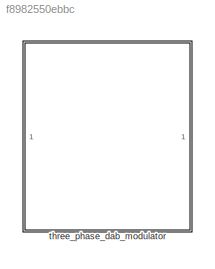
MODEL slx_f8982550ebbc
KIND library
CONFIG AbsTol = auto
CONFIG EnableMultiTasking = off
CONFIG FixedStep = auto
CONFIG MaxStep = auto
CONFIG MinStep = auto
CONFIG RelTol = 1e-3
CONFIG SampleTimeConstraint = Unconstrained
CONFIG SolverName = VariableStepAuto
CONFIG StartTime = 0.0
CONFIG StopTime = 10.0
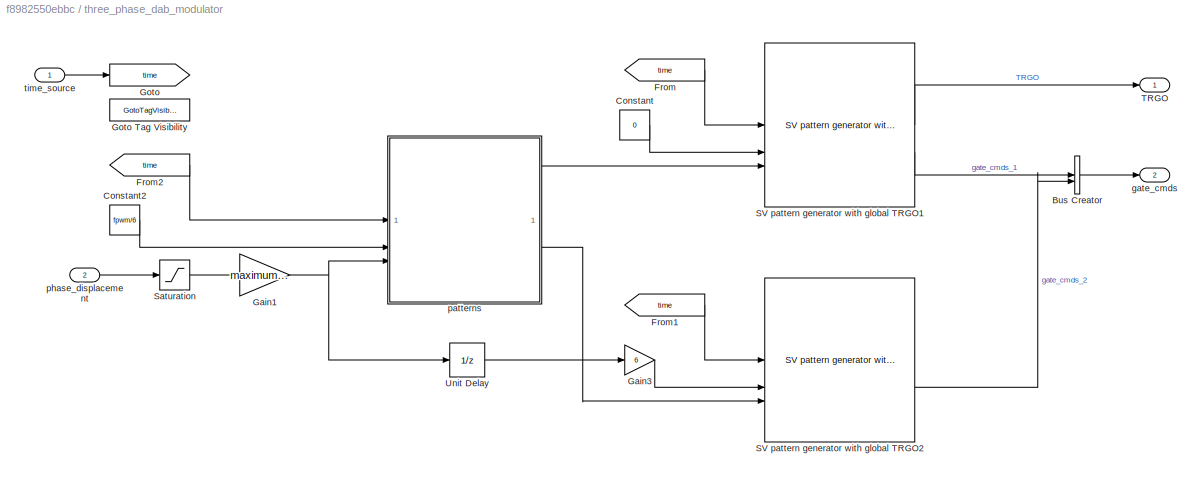
BLOCK [SubSystem] three_phase_dab_modulator
BLOCK [BusCreator] three_phase_dab_modulator/Bus Creator
  DisplayOption = bar
  InheritFromInputs = on
  Inputs = 2
BLOCK [Constant] three_phase_dab_modulator/Constant
  Value = 0
BLOCK [Constant] three_phase_dab_modulator/Constant2
  Value = fpwm/6
BLOCK [From] three_phase_dab_modulator/From
  GotoTag = time
  TagVisibility = scoped
BLOCK [From] three_phase_dab_modulator/From1
  GotoTag = time
  TagVisibility = scoped
BLOCK [From] three_phase_dab_modulator/From2
  GotoTag = time
  TagVisibility = scoped
BLOCK [Gain] three_phase_dab_modulator/Gain1
  Gain = maximum_abs_phase_shift
BLOCK [Gain] three_phase_dab_modulator/Gain3
  Gain = 6
BLOCK [Goto] three_phase_dab_modulator/Goto
  GotoTag = time
  TagVisibility = scoped
BLOCK [GotoTagVisibility] three_phase_dab_modulator/Goto Tag Visibility
  GotoTag = time
BLOCK [Reference] three_phase_dab_modulator/SV pattern generator with global TRGO1  REF=SV_pattern_generator_with_global_TRGO/SV pattern generator with global TRGO
  SourceBlock = SV_pattern_generator_with_global_TRGO/SV pattern generator with global TRGO
BLOCK [Reference] three_phase_dab_modulator/SV pattern generator with global TRGO2  REF=SV_pattern_generator_with_global_TRGO/SV pattern generator with global TRGO
  SourceBlock = SV_pattern_generator_with_global_TRGO/SV pattern generator with global TRGO
BLOCK [Saturate] three_phase_dab_modulator/Saturation
  LowerLimit = -1
  UpperLimit = 1
BLOCK [Outport] three_phase_dab_modulator/TRGO
BLOCK [UnitDelay] three_phase_dab_modulator/Unit Delay
  HasFrameUpgradeWarning = on
  SampleTime = tc
BLOCK [Outport] three_phase_dab_modulator/gate_cmds
  Port = 2
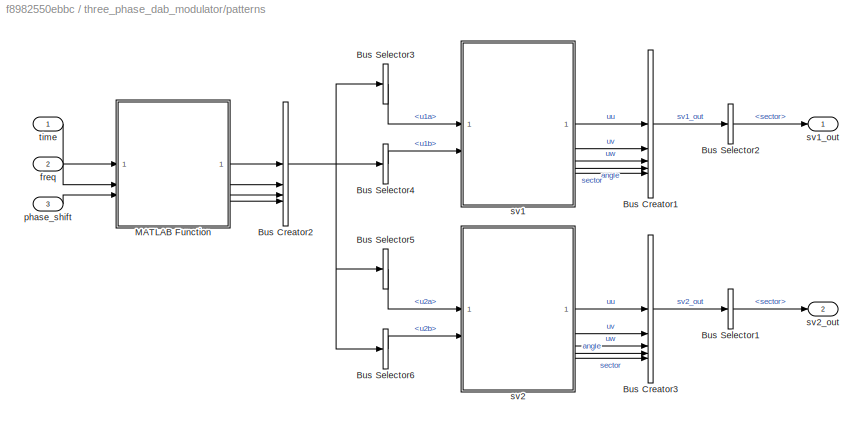
BLOCK [SubSystem] three_phase_dab_modulator/patterns
BLOCK [BusCreator] three_phase_dab_modulator/patterns/Bus Creator1
  DisplayOption = bar
  InheritFromInputs = on
  Inputs = 5
BLOCK [BusCreator] three_phase_dab_modulator/patterns/Bus Creator2
  DisplayOption = bar
  InheritFromInputs = on
  Inputs = 4
BLOCK [BusCreator] three_phase_dab_modulator/patterns/Bus Creator3
  DisplayOption = bar
  InheritFromInputs = on
  Inputs = 5
BLOCK [BusSelector] three_phase_dab_modulator/patterns/Bus Selector1
  OutputSignals = sector
BLOCK [BusSelector] three_phase_dab_modulator/patterns/Bus Selector2
  OutputSignals = sector
BLOCK [BusSelector] three_phase_dab_modulator/patterns/Bus Selector3
  OutputSignals = u1a
BLOCK [BusSelector] three_phase_dab_modulator/patterns/Bus Selector4
  OutputSignals = u1b
BLOCK [BusSelector] three_phase_dab_modulator/patterns/Bus Selector5
  OutputSignals = u2a
BLOCK [BusSelector] three_phase_dab_modulator/patterns/Bus Selector6
  OutputSignals = u2b
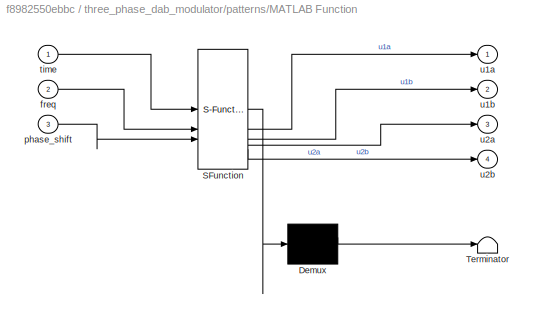
BLOCK [SubSystem] three_phase_dab_modulator/patterns/MATLAB Function
  ErrorFcn = Stateflow.Translate.translate
  PermitHierarchicalResolution = ExplicitOnly
  SFBlockType = MATLAB Function
  SystemSampleTime = tc
  TreatAsAtomicUnit = on
BLOCK [Demux] three_phase_dab_modulator/patterns/MATLAB Function/ Demux 
  Outputs = 1
BLOCK [S-Function] three_phase_dab_modulator/patterns/MATLAB Function/ SFunction 
  EnableBusSupport = off
  FunctionName = sf_sfun
  PortCounts = [3 5]
  SFcnIsStateOwnerBlock = off
  SFunctionDeploymentMode = off
  Tag = Stateflow S-Function 6
BLOCK [Terminator] three_phase_dab_modulator/patterns/MATLAB Function/ Terminator 
BLOCK [Inport] three_phase_dab_modulator/patterns/MATLAB Function/freq
  Port = 2
BLOCK [Inport] three_phase_dab_modulator/patterns/MATLAB Function/phase_shift
  Port = 3
BLOCK [Inport] three_phase_dab_modulator/patterns/MATLAB Function/time
BLOCK [Outport] three_phase_dab_modulator/patterns/MATLAB Function/u1a
BLOCK [Outport] three_phase_dab_modulator/patterns/MATLAB Function/u1b
  Port = 2
BLOCK [Outport] three_phase_dab_modulator/patterns/MATLAB Function/u2a
  Port = 3
BLOCK [Outport] three_phase_dab_modulator/patterns/MATLAB Function/u2b
  Port = 4
BLOCK [Inport] three_phase_dab_modulator/patterns/freq
  Port = 2
BLOCK [Inport] three_phase_dab_modulator/patterns/phase_shift
  Port = 3
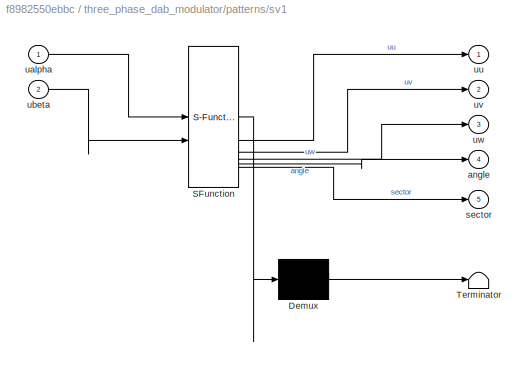
BLOCK [SubSystem] three_phase_dab_modulator/patterns/sv1
  ErrorFcn = Stateflow.Translate.translate
  PermitHierarchicalResolution = ExplicitOnly
  SFBlockType = MATLAB Function
  SystemSampleTime = tc
  TreatAsAtomicUnit = on
BLOCK [Demux] three_phase_dab_modulator/patterns/sv1/ Demux 
  Outputs = 1
BLOCK [S-Function] three_phase_dab_modulator/patterns/sv1/ SFunction 
  EnableBusSupport = off
  FunctionName = sf_sfun
  PortCounts = [2 6]
  SFcnIsStateOwnerBlock = off
  SFunctionDeploymentMode = off
  Tag = Stateflow S-Function 4
BLOCK [Terminator] three_phase_dab_modulator/patterns/sv1/ Terminator 
BLOCK [Outport] three_phase_dab_modulator/patterns/sv1/angle
  Port = 4
BLOCK [Outport] three_phase_dab_modulator/patterns/sv1/sector
  Port = 5
BLOCK [Inport] three_phase_dab_modulator/patterns/sv1/ualpha
BLOCK [Inport] three_phase_dab_modulator/patterns/sv1/ubeta
  Port = 2
BLOCK [Outport] three_phase_dab_modulator/patterns/sv1/uu
BLOCK [Outport] three_phase_dab_modulator/patterns/sv1/uv
  Port = 2
BLOCK [Outport] three_phase_dab_modulator/patterns/sv1/uw
  Port = 3
BLOCK [Outport] three_phase_dab_modulator/patterns/sv1_out
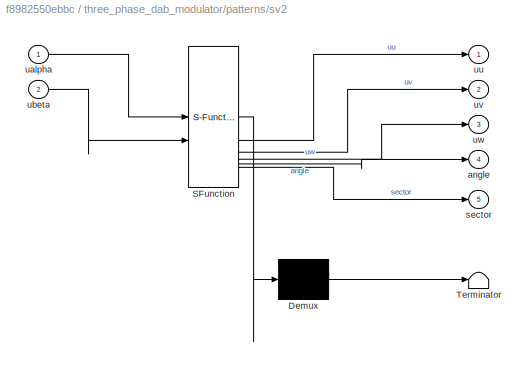
BLOCK [SubSystem] three_phase_dab_modulator/patterns/sv2
  ErrorFcn = Stateflow.Translate.translate
  PermitHierarchicalResolution = ExplicitOnly
  SFBlockType = MATLAB Function
  SystemSampleTime = tc
  TreatAsAtomicUnit = on
BLOCK [Demux] three_phase_dab_modulator/patterns/sv2/ Demux 
  Outputs = 1
BLOCK [S-Function] three_phase_dab_modulator/patterns/sv2/ SFunction 
  EnableBusSupport = off
  FunctionName = sf_sfun
  PortCounts = [2 6]
  SFcnIsStateOwnerBlock = off
  SFunctionDeploymentMode = off
  Tag = Stateflow S-Function 5
BLOCK [Terminator] three_phase_dab_modulator/patterns/sv2/ Terminator 
BLOCK [Outport] three_phase_dab_modulator/patterns/sv2/angle
  Port = 4
BLOCK [Outport] three_phase_dab_modulator/patterns/sv2/sector
  Port = 5
BLOCK [Inport] three_phase_dab_modulator/patterns/sv2/ualpha
BLOCK [Inport] three_phase_dab_modulator/patterns/sv2/ubeta
  Port = 2
BLOCK [Outport] three_phase_dab_modulator/patterns/sv2/uu
BLOCK [Outport] three_phase_dab_modulator/patterns/sv2/uv
  Port = 2
BLOCK [Outport] three_phase_dab_modulator/patterns/sv2/uw
  Port = 3
BLOCK [Outport] three_phase_dab_modulator/patterns/sv2_out
  Port = 2
BLOCK [Inport] three_phase_dab_modulator/patterns/time
BLOCK [Inport] three_phase_dab_modulator/phase_displacement
  Port = 2
BLOCK [Inport] three_phase_dab_modulator/time_source
LINE three_phase_dab_modulator/Bus Creator:1 -> three_phase_dab_modulator/gate_cmds:1
LINE three_phase_dab_modulator/Constant2:1 -> three_phase_dab_modulator/patterns:2
LINE three_phase_dab_modulator/Constant:1 -> three_phase_dab_modulator/SV pattern generator with global TRGO1:2
LINE three_phase_dab_modulator/From1:1 -> three_phase_dab_modulator/SV pattern generator with global TRGO2:1
LINE three_phase_dab_modulator/From2:1 -> three_phase_dab_modulator/patterns:1
LINE three_phase_dab_modulator/From:1 -> three_phase_dab_modulator/SV pattern generator with global TRGO1:1
NET three_phase_dab_modulator/Gain1:1 -> three_phase_dab_modulator/Unit Delay:1, three_phase_dab_modulator/patterns:3
LINE three_phase_dab_modulator/Gain3:1 -> three_phase_dab_modulator/SV pattern generator with global TRGO2:2
LINE three_phase_dab_modulator/SV pattern generator with global TRGO1:1 -> three_phase_dab_modulator/TRGO:1
LINE three_phase_dab_modulator/SV pattern generator with global TRGO1:2 -> three_phase_dab_modulator/Bus Creator:1
LINE three_phase_dab_modulator/SV pattern generator with global TRGO2:2 -> three_phase_dab_modulator/Bus Creator:2
LINE three_phase_dab_modulator/Saturation:1 -> three_phase_dab_modulator/Gain1:1
LINE three_phase_dab_modulator/Unit Delay:1 -> three_phase_dab_modulator/Gain3:1
LINE three_phase_dab_modulator/patterns/Bus Creator1:1 -> three_phase_dab_modulator/patterns/Bus Selector2:1
NET three_phase_dab_modulator/patterns/Bus Creator2:1 -> three_phase_dab_modulator/patterns/Bus Selector3:1, three_phase_dab_modulator/patterns/Bus Selector4:1, three_phase_dab_modulator/patterns/Bus Selector5:1, three_phase_dab_modulator/patterns/Bus Selector6:1
LINE three_phase_dab_modulator/patterns/Bus Creator3:1 -> three_phase_dab_modulator/patterns/Bus Selector1:1
LINE three_phase_dab_modulator/patterns/Bus Selector1:1 -> three_phase_dab_modulator/patterns/sv2_out:1
LINE three_phase_dab_modulator/patterns/Bus Selector2:1 -> three_phase_dab_modulator/patterns/sv1_out:1
LINE three_phase_dab_modulator/patterns/Bus Selector3:1 -> three_phase_dab_modulator/patterns/sv1:1
LINE three_phase_dab_modulator/patterns/Bus Selector4:1 -> three_phase_dab_modulator/patterns/sv1:2
LINE three_phase_dab_modulator/patterns/Bus Selector5:1 -> three_phase_dab_modulator/patterns/sv2:1
LINE three_phase_dab_modulator/patterns/Bus Selector6:1 -> three_phase_dab_modulator/patterns/sv2:2
LINE three_phase_dab_modulator/patterns/MATLAB Function:1 -> three_phase_dab_modulator/patterns/Bus Creator2:1
LINE three_phase_dab_modulator/patterns/MATLAB Function:2 -> three_phase_dab_modulator/patterns/Bus Creator2:2
LINE three_phase_dab_modulator/patterns/MATLAB Function:3 -> three_phase_dab_modulator/patterns/Bus Creator2:3
LINE three_phase_dab_modulator/patterns/MATLAB Function:4 -> three_phase_dab_modulator/patterns/Bus Creator2:4
LINE three_phase_dab_modulator/patterns/freq:1 -> three_phase_dab_modulator/patterns/MATLAB Function:2
LINE three_phase_dab_modulator/patterns/phase_shift:1 -> three_phase_dab_modulator/patterns/MATLAB Function:3
LINE three_phase_dab_modulator/patterns/sv1:1 -> three_phase_dab_modulator/patterns/Bus Creator1:1
LINE three_phase_dab_modulator/patterns/sv1:2 -> three_phase_dab_modulator/patterns/Bus Creator1:2
LINE three_phase_dab_modulator/patterns/sv1:3 -> three_phase_dab_modulator/patterns/Bus Creator1:3
LINE three_phase_dab_modulator/patterns/sv1:4 -> three_phase_dab_modulator/patterns/Bus Creator1:4
LINE three_phase_dab_modulator/patterns/sv1:5 -> three_phase_dab_modulator/patterns/Bus Creator1:5
LINE three_phase_dab_modulator/patterns/sv2:1 -> three_phase_dab_modulator/patterns/Bus Creator3:1
LINE three_phase_dab_modulator/patterns/sv2:2 -> three_phase_dab_modulator/patterns/Bus Creator3:2
LINE three_phase_dab_modulator/patterns/sv2:3 -> three_phase_dab_modulator/patterns/Bus Creator3:3
LINE three_phase_dab_modulator/patterns/sv2:4 -> three_phase_dab_modulator/patterns/Bus Creator3:4
LINE three_phase_dab_modulator/patterns/sv2:5 -> three_phase_dab_modulator/patterns/Bus Creator3:5
LINE three_phase_dab_modulator/patterns/time:1 -> three_phase_dab_modulator/patterns/MATLAB Function:1
LINE three_phase_dab_modulator/patterns:1 -> three_phase_dab_modulator/SV pattern generator with global TRGO1:3
LINE three_phase_dab_modulator/patterns:2 -> three_phase_dab_modulator/SV pattern generator with global TRGO2:3
LINE three_phase_dab_modulator/phase_displacement:1 -> three_phase_dab_modulator/Saturation:1
LINE three_phase_dab_modulator/time_source:1 -> three_phase_dab_modulator/Goto:1
note: NET lines group one-source signal fan-out (src -> all destinations, sorted); 1:1 wires keep LINE
CHART three_phase_dab_modulator/patterns/sv1 states=1 transitions=1
  STATE_LABEL 'eML_blk_kernel()'
  STATE_LABEL 'SCRIPT:\nfunction [uu, uv, uw, angle, sector] = sv(ualpha, ubeta)\n% SV: Space Vector duty calculation from Clarke (alpha,beta)\n% Inputs: ualpha, ubeta  (assumed normalized to reference)\n% Outputs: uu,uv,uw (phase duty ratios 0..1), angle (0..2*pi)\n\n% compute angle in [0,2*pi)\nangle = mod(atan2(ubeta, ualpha), 2*pi);\n\n% sector 1..6\nsector = floor(angle / (pi/3)) + 1;\nif sector > 6, sector = 6; end\n\n...<+1902ch>'
CHART three_phase_dab_modulator/patterns/sv2 states=1 transitions=1
  STATE_LABEL 'eML_blk_kernel()'
  STATE_LABEL 'SCRIPT:\nfunction [uu, uv, uw, angle, sector] = sv(ualpha, ubeta)\n% SV: Space Vector duty calculation from Clarke (alpha,beta)\n% Inputs: ualpha, ubeta  (assumed normalized to reference)\n% Outputs: uu,uv,uw (phase duty ratios 0..1), angle (0..2*pi)\n\n% compute angle in [0,2*pi)\nangle = mod(atan2(ubeta, ualpha), 2*pi);\n\n% sector 1..6\nsector = floor(angle / (pi/3)) + 1;\nif sector > 6, sector = 6; end\n\n...<+1902ch>'
CHART three_phase_dab_modulator/patterns/MATLAB Function states=1 transitions=1
  STATE_LABEL 'eML_blk_kernel()'
  STATE_LABEL 'SCRIPT:\nfunction [u1a,u1b,u2a,u2b] = fcn(time, freq, phase_shift)\n\nu1a = cos(2*pi*freq*time -pi/2);\nu1b = sin(2*pi*freq*time -pi/2);\nu2a = cos(2*pi*freq*time -pi/2 - phase_shift);\nu2b = sin(2*pi*freq*time -pi/2 - phase_shift);\n'
CHART  states=0 transitions=0
CHART  states=0 transitions=0
CHART  states=0 transitions=0
